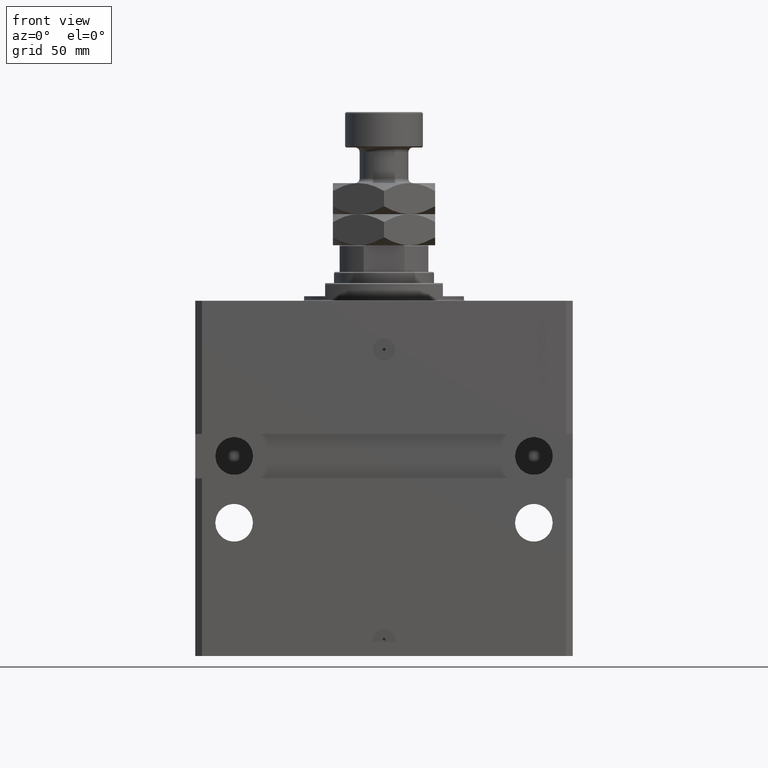
[diagram: clean part render]
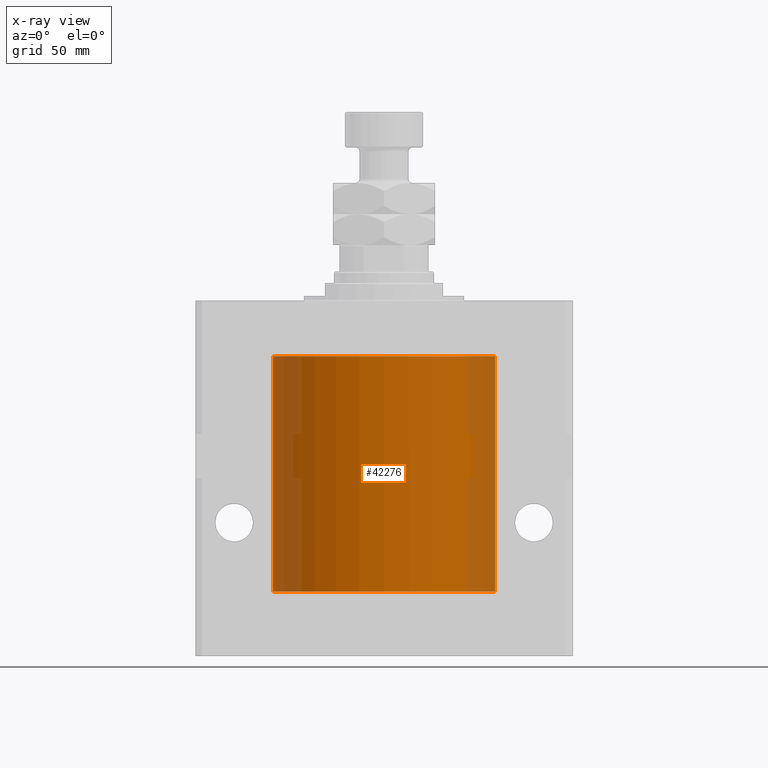
[diagram: x-ray — body ghosted, one internal face saturated and labeled with its STEP entity id]
A machine part, front view, then the same camera in x-ray: the body is ghosted and one INTERNAL B-rep face — a face not visible from any outside direction — is saturated and labeled: STEP entity #42276.
In plain terms, the highlighted cylindrical surface (partial cylindrical patch) has radius 50 mm, axis along (0, 0, 1).
Its self-contained STEP definition (entity closure, byte-faithful):
#617 = CIRCLE ( 'NONE', #7615, 50.00000000000000000 ) ;
#4292 = VERTEX_POINT ( 'NONE', #20194 ) ;
#4800 = CARTESIAN_POINT ( 'NONE',  ( 0.000000000000000000, 0.000000000000000000, -131.0999999999999943 ) ) ;
#5505 = EDGE_CURVE ( 'NONE', #4292, #46521, #21426, .T. ) ;
#7615 = AXIS2_PLACEMENT_3D ( 'NONE', #4800, #30045, #45575 ) ;
#8619 = EDGE_CURVE ( 'NONE', #24285, #46521, #23947, .T. ) ;
#11242 = EDGE_LOOP ( 'NONE', ( #32193, #13216, #33539, #39873 ) ) ;
#13216 = ORIENTED_EDGE ( 'NONE', *, *, #39550, .T. ) ;
#14684 = DIRECTION ( 'NONE',  ( 0.000000000000000000, 0.000000000000000000, 1.000000000000000000 ) ) ;
#15651 = CARTESIAN_POINT ( 'NONE',  ( 50.00000000000000000, 0.000000000000000000, -131.0999999999999943 ) ) ;
#15976 = AXIS2_PLACEMENT_3D ( 'NONE', #28554, #14684, #29484 ) ;
#16195 = DIRECTION ( 'NONE',  ( 1.000000000000000000, 0.000000000000000000, 0.000000000000000000 ) ) ;
#19363 = FACE_OUTER_BOUND ( 'NONE', #11242, .T. ) ;
#20194 = CARTESIAN_POINT ( 'NONE',  ( -50.00000000000000000, 6.123233995736766085E-15, -24.99999999999999289 ) ) ;
#21426 = CIRCLE ( 'NONE', #15976, 50.00000000000000000 ) ;
#22993 = CARTESIAN_POINT ( 'NONE',  ( 0.000000000000000000, 0.000000000000000000, -131.0999999999999943 ) ) ;
#23947 = LINE ( 'NONE', #31950, #37791 ) ;
#24285 = VERTEX_POINT ( 'NONE', #15651 ) ;
#27355 = CYLINDRICAL_SURFACE ( 'NONE', #32444, 50.00000000000000000 ) ;
#28554 = CARTESIAN_POINT ( 'NONE',  ( 0.000000000000000000, 0.000000000000000000, -24.99999999999999289 ) ) ;
#28695 = CARTESIAN_POINT ( 'NONE',  ( -50.00000000000000000, 6.123233995736766085E-15, -131.0999999999999943 ) ) ;
#29484 = DIRECTION ( 'NONE',  ( 1.000000000000000000, 0.000000000000000000, 0.000000000000000000 ) ) ;
#30045 = DIRECTION ( 'NONE',  ( 0.000000000000000000, 0.000000000000000000, 1.000000000000000000 ) ) ;
#30279 = DIRECTION ( 'NONE',  ( -0.000000000000000000, -0.000000000000000000, 1.000000000000000000 ) ) ;
#31378 = LINE ( 'NONE', #28695, #32347 ) ;
#31458 = DIRECTION ( 'NONE',  ( -0.000000000000000000, -0.000000000000000000, 1.000000000000000000 ) ) ;
#31950 = CARTESIAN_POINT ( 'NONE',  ( 50.00000000000000000, 0.000000000000000000, -131.0999999999999943 ) ) ;
#32193 = ORIENTED_EDGE ( 'NONE', *, *, #43166, .F. ) ;
#32347 = VECTOR ( 'NONE', #39635, 1000.000000000000000 ) ;
#32444 = AXIS2_PLACEMENT_3D ( 'NONE', #22993, #30279, #16195 ) ;
#33539 = ORIENTED_EDGE ( 'NONE', *, *, #5505, .T. ) ;
#37791 = VECTOR ( 'NONE', #31458, 1000.000000000000000 ) ;
#38446 = VERTEX_POINT ( 'NONE', #43728 ) ;
#39550 = EDGE_CURVE ( 'NONE', #38446, #4292, #31378, .T. ) ;
#39635 = DIRECTION ( 'NONE',  ( -0.000000000000000000, -0.000000000000000000, 1.000000000000000000 ) ) ;
#39873 = ORIENTED_EDGE ( 'NONE', *, *, #8619, .F. ) ;
#42276 = ADVANCED_FACE ( 'NONE', ( #19363 ), #27355, .F. ) ;
#43166 = EDGE_CURVE ( 'NONE', #38446, #24285, #617, .T. ) ;
#43728 = CARTESIAN_POINT ( 'NONE',  ( -50.00000000000000000, 6.123233995736766085E-15, -131.0999999999999943 ) ) ;
#45575 = DIRECTION ( 'NONE',  ( 1.000000000000000000, 0.000000000000000000, 0.000000000000000000 ) ) ;
#46521 = VERTEX_POINT ( 'NONE', #47661 ) ;
#47661 = CARTESIAN_POINT ( 'NONE',  ( 50.00000000000000000, 0.000000000000000000, -24.99999999999999289 ) ) ;